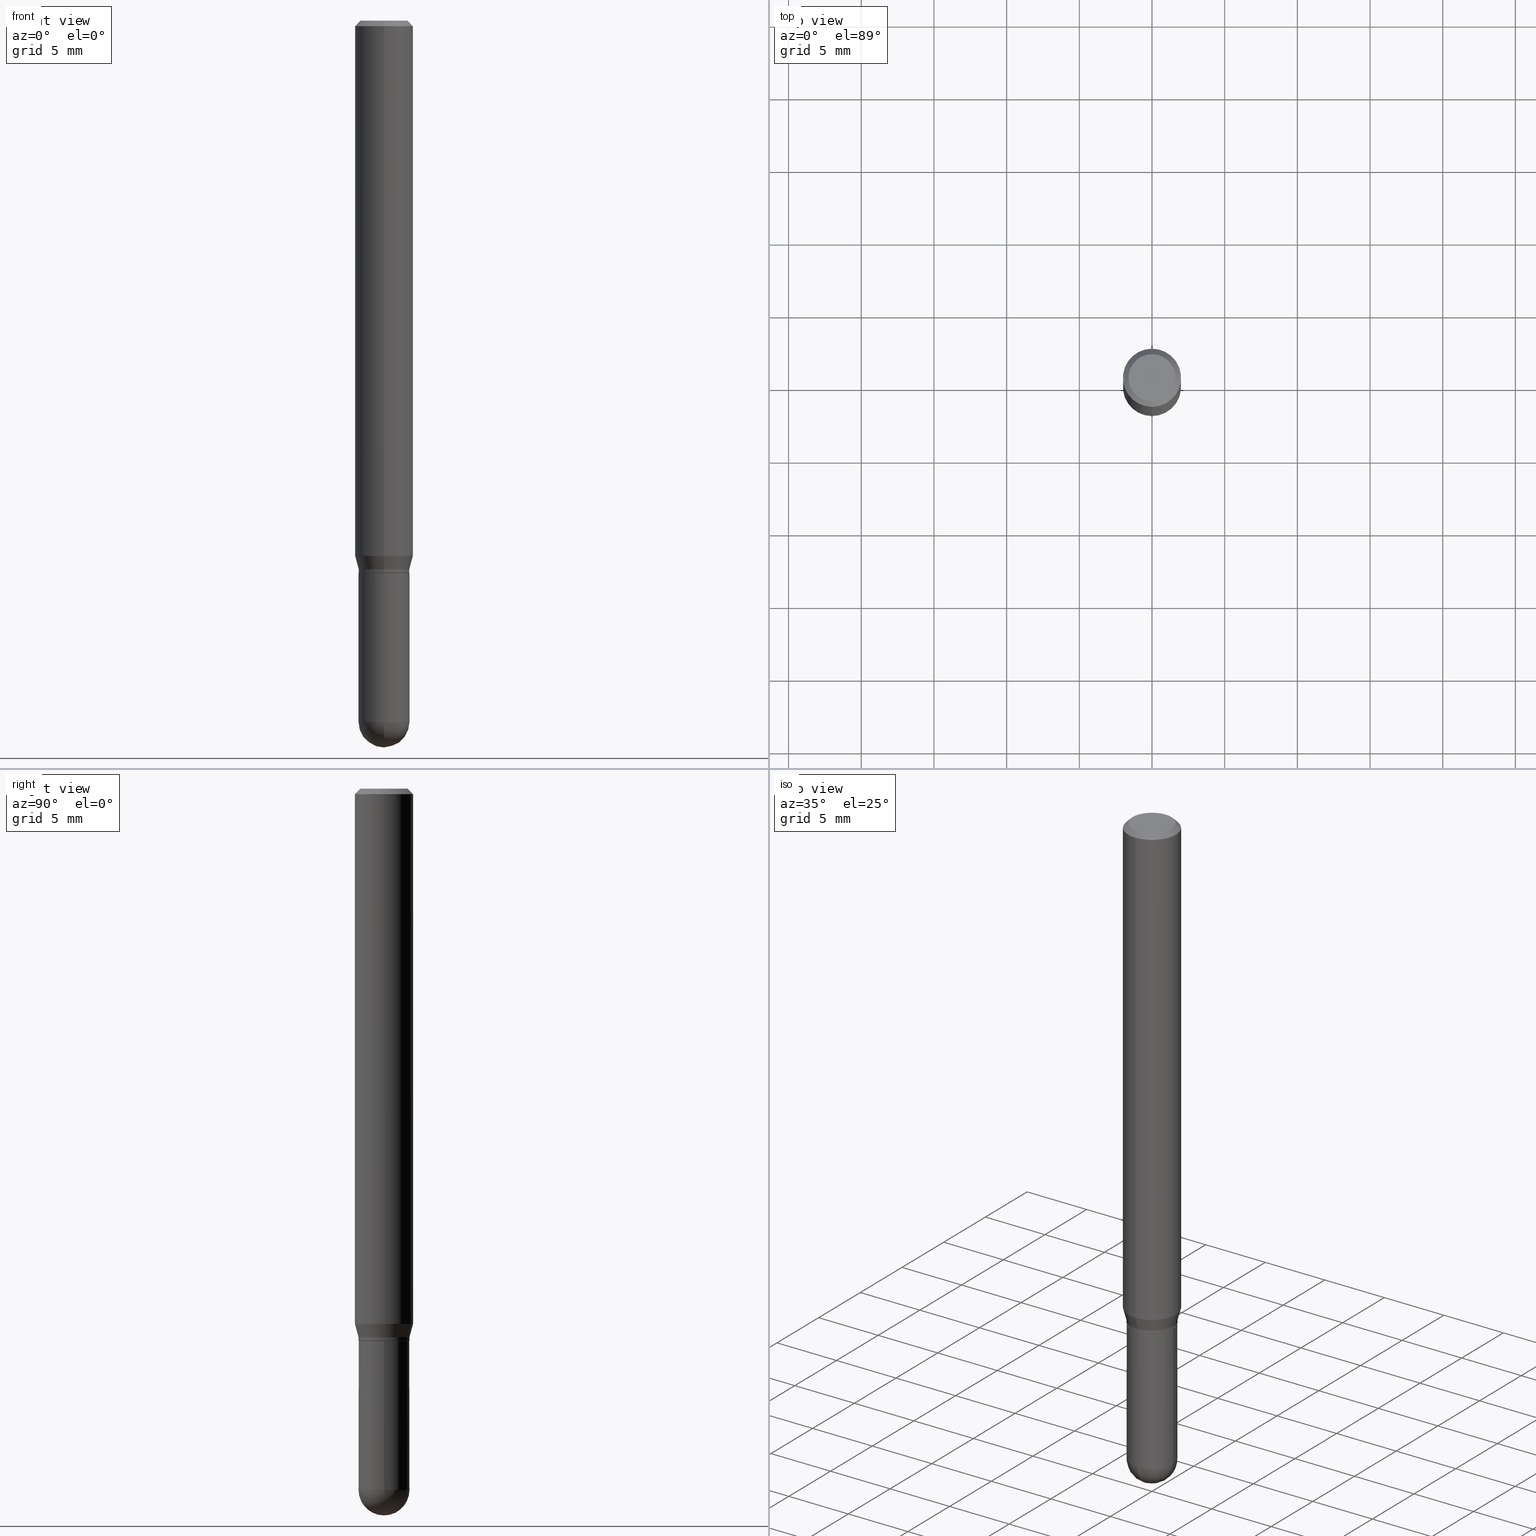
[diagram: canonical four-view strip — front | top / right | iso, engineering-drawing reading convention]
A machine part, canonical four-view strip (front | top / right | iso — engineering-drawing reading convention). The complete STEP part file that produces these views, byte-faithful:
ISO-10303-21;
HEADER;
FILE_DESCRIPTION (( 'STEP AP203' ),
    '1' );
FILE_NAME ('48847.STEP',
    '2024-03-08T13:28:36',
    ( '' ),
    ( '' ),
    'SwSTEP 2.0',
    'SolidWorks 2023',
    '' );
FILE_SCHEMA (( 'CONFIG_CONTROL_DESIGN' ));
ENDSEC;

DATA;
#1 = CALENDAR_DATE ( 2024, 8, 3 ) ;
#2 = CIRCLE ( 'NONE', #61, 0.07875000000000000056 ) ;
#3 = CARTESIAN_POINT ( 'NONE',  ( -4.776346471537044438E-16, -0.06840000000000528990, -1.496099999999999541 ) ) ;
#4 = PERSON_AND_ORGANIZATION_ROLE ( 'creator' ) ;
#5 = ADVANCED_FACE ( 'NONE', ( #337 ), #434, .T. ) ;
#6 = DIRECTION ( 'NONE',  ( 6.982962677686265922E-15, 1.000000000000000000, -3.964946289788482474E-15 ) ) ;
#7 = CARTESIAN_POINT ( 'NONE',  ( -4.811261284925454787E-16, -0.06890000000000491565, -1.486099999999999755 ) ) ;
#8 = CARTESIAN_POINT ( 'NONE',  ( -5.499083108677930499E-16, -0.07875000000000004219, -0.01499999999999973403 ) ) ;
#9 = ORIENTED_EDGE ( 'NONE', *, *, #501, .F. ) ;
#10 = FACE_OUTER_BOUND ( 'NONE', #179, .T. ) ;
#11 = ORIENTED_EDGE ( 'NONE', *, *, #383, .T. ) ;
#12 = EDGE_CURVE ( 'NONE', #94, #507, #140, .T. ) ;
#13 = DIRECTION ( 'NONE',  ( 1.000000000000000000, -6.982962677686265922E-15, 4.883557194083112340E-29 ) ) ;
#14 = ORIENTED_EDGE ( 'NONE', *, *, #142, .F. ) ;
#15 = DIRECTION ( 'NONE',  ( -2.445670945378724655E-29, 3.491191864012879314E-15, 1.000000000000000000 ) ) ;
#16 = VERTEX_POINT ( 'NONE', #72 ) ;
#17 = AXIS2_PLACEMENT_3D ( 'NONE', #92, #323, #249 ) ;
#18 = VECTOR ( 'NONE', #105, 39.37007874015748143 ) ;
#19 = FACE_OUTER_BOUND ( 'NONE', #456, .T. ) ;
#20 = EDGE_CURVE ( 'NONE', #321, #369, #338, .T. ) ;
#21 = ORIENTED_EDGE ( 'NONE', *, *, #494, .F. ) ;
#22 = DIRECTION ( 'NONE',  ( -6.982962677686266711E-15, -1.000000000000000000, 3.964946289788496674E-15 ) ) ;
#23 = ORIENTED_EDGE ( 'NONE', *, *, #480, .F. ) ;
#24 = DIRECTION ( 'NONE',  ( -2.445670945378724655E-29, 3.491191864012879314E-15, 1.000000000000000000 ) ) ;
#25 = APPLICATION_CONTEXT ( 'configuration controlled 3d designs of mechanical parts and assemblies' ) ;
#26 = ORIENTED_EDGE ( 'NONE', *, *, #20, .T. ) ;
#27 = EDGE_CURVE ( 'NONE', #507, #297, #350, .T. ) ;
#28 = DIRECTION ( 'NONE',  ( 6.982962677686264344E-15, 1.000000000000000000, -3.496114991891765576E-15 ) ) ;
#29 = CARTESIAN_POINT ( 'NONE',  ( 4.811261284926304785E-16, 0.06889999999999341096, -1.899600000000000399 ) ) ;
#30 = APPLICATION_PROTOCOL_DEFINITION ( 'international standard', 'config_control_design', 1994, #214 ) ;
#31 = VERTEX_POINT ( 'NONE', #392 ) ;
#32 = CARTESIAN_POINT ( 'NONE',  ( 0.000000000000000000, 0.000000000000000000, 0.000000000000000000 ) ) ;
#33 = VERTEX_POINT ( 'NONE', #29 ) ;
#34 = CIRCLE ( 'NONE', #17, 0.06889999999999998903 ) ;
#35 = LOCAL_TIME ( 8, 28, 36.00000000000000000, #159 ) ;
#36 = PERSON_AND_ORGANIZATION ( #389, #385 ) ;
#37 = DIRECTION ( 'NONE',  ( -1.807323732225323828E-15, -0.2588190451025172978, 0.9659258262890690894 ) ) ;
#38 = EDGE_CURVE ( 'NONE', #493, #252, #482, .T. ) ;
#39 = PERSON_AND_ORGANIZATION ( #389, #385 ) ;
#40 = APPROVAL_DATE_TIME ( #393, #272 ) ;
#41 = CARTESIAN_POINT ( 'NONE',  ( 4.645412544229285965E-29, -6.632417951266439838E-15, -1.899600000000000177 ) ) ;
#42 = AXIS2_PLACEMENT_3D ( 'NONE', #438, #202, #83 ) ;
#43 = DIRECTION ( 'NONE',  ( -6.982962677686266711E-15, -1.000000000000000000, 3.964946289788496674E-15 ) ) ;
#44 = AXIS2_PLACEMENT_3D ( 'NONE', #344, #298, #69 ) ;
#45 = LINE ( 'NONE', #317, #164 ) ;
#46 = CARTESIAN_POINT ( 'NONE',  ( 3.634511591927322892E-29, -5.188260229109540494E-15, -1.486099999999999977 ) ) ;
#47 = ORIENTED_EDGE ( 'NONE', *, *, #372, .F. ) ;
#48 = AXIS2_PLACEMENT_3D ( 'NONE', #63, #430, #260 ) ;
#49 = CARTESIAN_POINT ( 'NONE',  ( -4.811261284925827524E-16, -0.06889999999999986413, 2.405431194304868888E-16 ) ) ;
#50 = CONICAL_SURFACE ( 'NONE', #208, 0.06889999999999972535, 0.2617993877991494078 ) ;
#51 = EDGE_LOOP ( 'NONE', ( #9, #262, #130, #57 ) ) ;
#52 = CIRCLE ( 'NONE', #86, 0.06890000000000007230 ) ;
#53 = ADVANCED_FACE ( 'NONE', ( #65 ), #382, .T. ) ;
#54 = CARTESIAN_POINT ( 'NONE',  ( 5.595524044111143991E-16, 0.07874999999999994504, -0.01500000000000028394 ) ) ;
#55 = VERTEX_POINT ( 'NONE', #345 ) ;
#56 = DIRECTION ( 'NONE',  ( -6.982962677686266711E-15, -1.000000000000000000, 3.964946289788496674E-15 ) ) ;
#57 = ORIENTED_EDGE ( 'NONE', *, *, #98, .F. ) ;
#58 = EDGE_CURVE ( 'NONE', #55, #94, #146, .T. ) ;
#59 = DIRECTION ( 'NONE',  ( -1.000000000000000000, 6.982962677686265922E-15, -4.876176775795935793E-29 ) ) ;
#60 = ORIENTED_EDGE ( 'NONE', *, *, #279, .F. ) ;
#61 = AXIS2_PLACEMENT_3D ( 'NONE', #432, #241, #441 ) ;
#62 =( NAMED_UNIT ( * ) PLANE_ANGLE_UNIT ( ) SI_UNIT ( $, .RADIAN. ) );
#63 = CARTESIAN_POINT ( 'NONE',  ( 3.658968301381109379E-29, -5.223172147749667414E-15, -1.496099999999999985 ) ) ;
#64 = DIRECTION ( 'NONE',  ( 1.000000000000000000, 0.000000000000000000, 0.000000000000000000 ) ) ;
#65 = FACE_OUTER_BOUND ( 'NONE', #378, .T. ) ;
#66 = ORIENTED_EDGE ( 'NONE', *, *, #58, .T. ) ;
#67 = AXIS2_PLACEMENT_3D ( 'NONE', #99, #445, #96 ) ;
#68 = SECURITY_CLASSIFICATION ( '', '', #197 ) ;
#69 = DIRECTION ( 'NONE',  ( 6.982962677686265922E-15, 1.000000000000000000, -3.491191864012879314E-15 ) ) ;
#70 = EDGE_LOOP ( 'NONE', ( #292, #66, #374, #14 ) ) ;
#71 = DIRECTION ( 'NONE',  ( -7.105427357601001859E-15, -1.000000000000000000, 0.000000000000000000 ) ) ;
#72 = CARTESIAN_POINT ( 'NONE',  ( -4.895639449386624073E-16, -0.06890000000000662261, -1.899599999999999955 ) ) ;
#73 = APPROVAL_DATE_TIME ( #433, #89 ) ;
#74 = EDGE_CURVE ( 'NONE', #297, #286, #2, .T. ) ;
#75 = CARTESIAN_POINT ( 'NONE',  ( -4.888104823412213911E-16, -0.06375000000000000111, 2.141869659503777989E-16 ) ) ;
#76 = AXIS2_PLACEMENT_3D ( 'NONE', #436, #315, #478 ) ;
#77 = PERSON_AND_ORGANIZATION ( #389, #385 ) ;
#78 = FACE_OUTER_BOUND ( 'NONE', #51, .T. ) ;
#79 = PERSON_AND_ORGANIZATION_ROLE ( 'creator' ) ;
#80 = LINE ( 'NONE', #239, #233 ) ;
#81 = ADVANCED_FACE ( 'NONE', ( #78 ), #512, .T. ) ;
#82 = DATE_AND_TIME ( #440, #296 ) ;
#83 = DIRECTION ( 'NONE',  ( 6.982962677686265922E-15, 1.000000000000000000, -3.964946289788482474E-15 ) ) ;
#84 = CLOSED_SHELL ( 'NONE', ( #53, #467, #413, #255, #120, #308, #203, #343, #439, #314, #5, #332 ) ) ;
#85 = AXIS2_PLACEMENT_3D ( 'NONE', #280, #355, #154 ) ;
#86 = AXIS2_PLACEMENT_3D ( 'NONE', #186, #469, #336 ) ;
#87 = LINE ( 'NONE', #3, #266 ) ;
#88 = CARTESIAN_POINT ( 'NONE',  ( 4.645412544229285965E-29, -6.632417951266439838E-15, -1.899600000000000177 ) ) ;
#89 = APPROVAL ( #313, 'UNSPECIFIED' ) ;
#90 = CARTESIAN_POINT ( 'NONE',  ( 3.658665880933582389E-29, -5.223605231043229660E-15, -1.496099999999999985 ) ) ;
#91 = ORIENTED_EDGE ( 'NONE', *, *, #461, .T. ) ;
#92 = CARTESIAN_POINT ( 'NONE',  ( 3.657745465908420363E-29, -5.221426551817661699E-15, -1.495600000000000041 ) ) ;
#93 = CIRCLE ( 'NONE', #435, 0.07875000000000000056 ) ;
#94 = VERTEX_POINT ( 'NONE', #479 ) ;
#95 = CIRCLE ( 'NONE', #452, 0.06890000000000007230 ) ;
#96 = DIRECTION ( 'NONE',  ( -6.982962677686265922E-15, -1.000000000000000000, 3.491191864012879314E-15 ) ) ;
#97 = EDGE_LOOP ( 'NONE', ( #26, #206 ) ) ;
#98 = EDGE_CURVE ( 'NONE', #16, #295, #118, .T. ) ;
#99 = CARTESIAN_POINT ( 'NONE',  ( 3.658968301381109379E-29, -5.223172147749667414E-15, -1.496099999999999985 ) ) ;
#100 = ORIENTED_EDGE ( 'NONE', *, *, #485, .F. ) ;
#101 = ORIENTED_EDGE ( 'NONE', *, *, #74, .F. ) ;
#102 = VECTOR ( 'NONE', #108, 39.37007874015748854 ) ;
#103 = CARTESIAN_POINT ( 'NONE',  ( 2.048620028946805468E-46, -2.924402234498220248E-32, -8.376515380443243552E-18 ) ) ;
#104 = EDGE_LOOP ( 'NONE', ( #484, #458, #371, #182, #283 ) ) ;
#105 = DIRECTION ( 'NONE',  ( -4.851104656540964275E-15, -0.7071067811865500152, -0.7071067811865450192 ) ) ;
#106 = EDGE_CURVE ( 'NONE', #252, #412, #87, .T. ) ;
#107 = ORIENTED_EDGE ( 'NONE', *, *, #404, .T. ) ;
#108 = DIRECTION ( 'NONE',  ( 1.839019923739594004E-15, 0.2588190451025240701, 0.9659258262890673130 ) ) ;
#109 = AXIS2_PLACEMENT_3D ( 'NONE', #212, #486, #453 ) ;
#110 = CIRCLE ( 'NONE', #367, 0.06889999999999996128 ) ;
#111 = CARTESIAN_POINT ( 'NONE',  ( 3.658968301381109379E-29, -5.223172147749667414E-15, -1.496099999999999985 ) ) ;
#112 = EDGE_LOOP ( 'NONE', ( #171, #250, #326, #489 ) ) ;
#113 = EDGE_CURVE ( 'NONE', #425, #286, #198, .T. ) ;
#114 = EDGE_LOOP ( 'NONE', ( #138, #11, #107, #21 ) ) ;
#115 = APPROVAL_STATUS ( 'not_yet_approved' ) ;
#116 = DIRECTION ( 'NONE',  ( 1.000000000000000000, -6.982962677686265922E-15, 4.876176775795935232E-29 ) ) ;
#117 = UNCERTAINTY_MEASURE_WITH_UNIT (LENGTH_MEASURE( 1.000000000000000082E-05 ), #419, 'distance_accuracy_value', 'NONE');
#118 = CIRCLE ( 'NONE', #192, 0.06890000000000007230 ) ;
#119 = CALENDAR_DATE ( 2024, 8, 3 ) ;
#120 = ADVANCED_FACE ( 'NONE', ( #273 ), #50, .T. ) ;
#121 = COORDINATED_UNIVERSAL_TIME_OFFSET ( 5, 0, .BEHIND. ) ;
#122 = CARTESIAN_POINT ( 'NONE',  ( 4.679918503997674770E-29, -6.583003452920844326E-15, -1.899600000000000177 ) ) ;
#123 = DIRECTION ( 'NONE',  ( -6.982962677686264344E-15, -1.000000000000000000, 3.496114991891765576E-15 ) ) ;
#124 = CIRCLE ( 'NONE', #264, 0.06889999999999998903 ) ;
#125 = CYLINDRICAL_SURFACE ( 'NONE', #328, 0.06889999999999986413 ) ;
#126 = EDGE_CURVE ( 'NONE', #412, #31, #124, .T. ) ;
#127 = DIRECTION ( 'NONE',  ( -2.445468806185136597E-29, 3.491481338843145583E-15, 1.000000000000000000 ) ) ;
#128 = ORIENTED_EDGE ( 'NONE', *, *, #98, .T. ) ;
#129 = CARTESIAN_POINT ( 'NONE',  ( 3.634511591927322892E-29, -5.188260229109540494E-15, -1.486099999999999977 ) ) ;
#130 = ORIENTED_EDGE ( 'NONE', *, *, #474, .F. ) ;
#131 = ADVANCED_BREP_SHAPE_REPRESENTATION ( '48847', ( #153, #320, #218 ), #288 ) ;
#132 = FACE_OUTER_BOUND ( 'NONE', #388, .T. ) ;
#133 = AXIS2_PLACEMENT_3D ( 'NONE', #334, #13, #411 ) ;
#134 = ORIENTED_EDGE ( 'NONE', *, *, #187, .T. ) ;
#135 = FACE_OUTER_BOUND ( 'NONE', #177, .T. ) ;
#136 = VERTEX_POINT ( 'NONE', #403 ) ;
#137 = CARTESIAN_POINT ( 'NONE',  ( 3.634511591927322892E-29, -5.188260229109540494E-15, -1.486099999999999977 ) ) ;
#138 = ORIENTED_EDGE ( 'NONE', *, *, #461, .F. ) ;
#139 = CARTESIAN_POINT ( 'NONE',  ( 4.679918503997674770E-29, -6.583003452920844326E-15, -1.899600000000000177 ) ) ;
#140 = CIRCLE ( 'NONE', #207, 0.07874999999999997280 ) ;
#141 = VERTEX_POINT ( 'NONE', #75 ) ;
#142 = EDGE_CURVE ( 'NONE', #168, #507, #80, .T. ) ;
#143 = DIRECTION ( 'NONE',  ( -2.445468806185136597E-29, 3.491481338843145583E-15, 1.000000000000000000 ) ) ;
#144 = ORIENTED_EDGE ( 'NONE', *, *, #404, .F. ) ;
#145 = CARTESIAN_POINT ( 'NONE',  ( 3.668506418068089103E-31, -5.236787796019322053E-17, -0.01500000000000000812 ) ) ;
#146 = LINE ( 'NONE', #466, #102 ) ;
#147 = DIRECTION ( 'NONE',  ( -1.000000000000000000, 7.105427357601001070E-15, -4.926315508542082329E-29 ) ) ;
#148 = DIRECTION ( 'NONE',  ( -6.982962677686265922E-15, -1.000000000000000000, 3.469013325287954477E-15 ) ) ;
#149 = EDGE_CURVE ( 'NONE', #286, #297, #93, .T. ) ;
#150 = CIRCLE ( 'NONE', #427, 0.06840000000000005798 ) ;
#151 = ORIENTED_EDGE ( 'NONE', *, *, #284, .F. ) ;
#152 = APPROVAL_DATE_TIME ( #82, #263 ) ;
#153 = MANIFOLD_SOLID_BREP ( 'Body-Move/Copy2[1]', #327 ) ;
#154 = DIRECTION ( 'NONE',  ( -6.982962677686265922E-15, -1.000000000000000000, 3.491191864012879709E-15 ) ) ;
#155 = MECHANICAL_CONTEXT ( 'NONE', #214, 'mechanical' ) ;
#156 = DIRECTION ( 'NONE',  ( -2.445468806185136597E-29, 3.491481338843145583E-15, 1.000000000000000000 ) ) ;
#157 = AXIS2_PLACEMENT_3D ( 'NONE', #307, #380, #496 ) ;
#158 = APPROVAL_PERSON_ORGANIZATION ( #311, #89, #473 ) ;
#159 = COORDINATED_UNIVERSAL_TIME_OFFSET ( 5, 0, .BEHIND. ) ;
#160 = DIRECTION ( 'NONE',  ( -2.445468806185136597E-29, 3.491481338843145583E-15, 1.000000000000000000 ) ) ;
#161 = FACE_OUTER_BOUND ( 'NONE', #259, .T. ) ;
#162 = FACE_OUTER_BOUND ( 'NONE', #104, .T. ) ;
#163 = ADVANCED_FACE ( 'NONE', ( #442 ), #276, .T. ) ;
#164 = VECTOR ( 'NONE', #270, 39.37007874015748143 ) ;
#165 = DIRECTION ( 'NONE',  ( -6.982962677686264344E-15, -1.000000000000000000, 3.491191864012878920E-15 ) ) ;
#166 = ORIENTED_EDGE ( 'NONE', *, *, #149, .T. ) ;
#167 = CYLINDRICAL_SURFACE ( 'NONE', #451, 0.07874999999999997280 ) ;
#168 = VERTEX_POINT ( 'NONE', #7 ) ;
#169 = CC_DESIGN_DATE_AND_TIME_ASSIGNMENT ( #477, #271, ( #68 ) ) ;
#170 = FACE_OUTER_BOUND ( 'NONE', #112, .T. ) ;
#171 = ORIENTED_EDGE ( 'NONE', *, *, #58, .F. ) ;
#172 = AXIS2_PLACEMENT_3D ( 'NONE', #88, #448, #483 ) ;
#173 = PLANE ( 'NONE',  #67 ) ;
#174 = PRODUCT_DEFINITION_FORMATION_WITH_SPECIFIED_SOURCE ( 'ANY', '', #191, .NOT_KNOWN. ) ;
#175 = ORIENTED_EDGE ( 'NONE', *, *, #501, .T. ) ;
#176 = DIRECTION ( 'NONE',  ( -2.445468806185136877E-29, 3.491481338843145188E-15, 1.000000000000000000 ) ) ;
#177 = EDGE_LOOP ( 'NONE', ( #23, #188, #269, #166 ) ) ;
#178 =( NAMED_UNIT ( * ) SI_UNIT ( $, .STERADIAN. ) SOLID_ANGLE_UNIT ( ) );
#179 = EDGE_LOOP ( 'NONE', ( #100, #333, #364, #420 ) ) ;
#180 = ADVANCED_FACE ( 'NONE', ( #162 ), #509, .T. ) ;
#181 = CARTESIAN_POINT ( 'NONE',  ( -5.499083108677578469E-16, -0.07875000000000501044, -1.449339299545445270 ) ) ;
#182 = ORIENTED_EDGE ( 'NONE', *, *, #211, .F. ) ;
#183 = AXIS2_PLACEMENT_3D ( 'NONE', #281, #15, #165 ) ;
#184 = VECTOR ( 'NONE', #209, 39.37007874015748143 ) ;
#185 = ORIENTED_EDGE ( 'NONE', *, *, #444, .T. ) ;
#186 = CARTESIAN_POINT ( 'NONE',  ( 4.645412544229285965E-29, -6.632417951266439838E-15, -1.899600000000000177 ) ) ;
#187 = EDGE_CURVE ( 'NONE', #507, #94, #497, .T. ) ;
#188 = ORIENTED_EDGE ( 'NONE', *, *, #299, .F. ) ;
#189 = CARTESIAN_POINT ( 'NONE',  ( 4.975360907851465623E-16, 0.06375000000000000111, -2.309399967112643384E-16 ) ) ;
#190 = DIRECTION ( 'NONE',  ( 1.000000000000000000, -6.982962677686273021E-15, 0.000000000000000000 ) ) ;
#191 = PRODUCT ( '48847', '48847', '', ( #155 ) ) ;
#192 = AXIS2_PLACEMENT_3D ( 'NONE', #41, #156, #396 ) ;
#193 = CC_DESIGN_APPROVAL ( #263, ( #68 ) ) ;
#194 = DIRECTION ( 'NONE',  ( -2.445670945378724655E-29, 3.491191864012879314E-15, 1.000000000000000000 ) ) ;
#195 = COORDINATED_UNIVERSAL_TIME_OFFSET ( 5, 0, .BEHIND. ) ;
#196 = DIRECTION ( 'NONE',  ( 2.438088387897960049E-29, -3.491481338843145188E-15, -1.000000000000000000 ) ) ;
#197 = SECURITY_CLASSIFICATION_LEVEL ( 'unclassified' ) ;
#198 = LINE ( 'NONE', #475, #349 ) ;
#199 = CONICAL_SURFACE ( 'NONE', #109, 0.07875000000000000056, 0.7853981633974483900 ) ;
#200 = AXIS2_PLACEMENT_3D ( 'NONE', #346, #301, #294 ) ;
#201 = COORDINATED_UNIVERSAL_TIME_OFFSET ( 5, 0, .BEHIND. ) ;
#202 = DIRECTION ( 'NONE',  ( -1.000000000000000000, 6.982962677686265922E-15, -4.883557194083112901E-29 ) ) ;
#203 = ADVANCED_FACE ( 'NONE', ( #161 ), #278, .T. ) ;
#204 = DIRECTION ( 'NONE',  ( -4.937700262164674260E-15, -0.7071067811865632269, 0.7071067811865319186 ) ) ;
#205 = CYLINDRICAL_SURFACE ( 'NONE', #460, 0.06890000000000007230 ) ;
#206 = ORIENTED_EDGE ( 'NONE', *, *, #293, .T. ) ;
#207 = AXIS2_PLACEMENT_3D ( 'NONE', #265, #225, #148 ) ;
#208 = AXIS2_PLACEMENT_3D ( 'NONE', #362, #316, #43 ) ;
#209 = DIRECTION ( 'NONE',  ( -2.445670945378724655E-29, 3.491191864012879314E-15, 1.000000000000000000 ) ) ;
#210 = ORIENTED_EDGE ( 'NONE', *, *, #383, .F. ) ;
#211 = EDGE_CURVE ( 'NONE', #295, #321, #45, .T. ) ;
#212 = CARTESIAN_POINT ( 'NONE',  ( 3.668506418068089103E-31, -5.236787796019322053E-17, -0.01500000000000000812 ) ) ;
#213 = ORIENTED_EDGE ( 'NONE', *, *, #211, .T. ) ;
#214 = APPLICATION_CONTEXT ( 'configuration controlled 3d designs of mechanical parts and assemblies' ) ;
#215 = FACE_OUTER_BOUND ( 'NONE', #447, .T. ) ;
#216 = ORIENTED_EDGE ( 'NONE', *, *, #429, .F. ) ;
#217 = DIRECTION ( 'NONE',  ( -6.982962677686265922E-15, -1.000000000000000000, 3.491191864012879709E-15 ) ) ;
#218 = AXIS2_PLACEMENT_3D ( 'NONE', #32, #462, #64 ) ;
#219 = ORIENTED_EDGE ( 'NONE', *, *, #27, .T. ) ;
#220 = CARTESIAN_POINT ( 'NONE',  ( 4.895639449387079640E-16, 0.06889999999999986413, -2.405431194304868888E-16 ) ) ;
#221 = EDGE_CURVE ( 'NONE', #94, #286, #232, .T. ) ;
#222 = CARTESIAN_POINT ( 'NONE',  ( -5.499083108677932471E-16, -0.07874999999999997280, 2.749313592910141844E-16 ) ) ;
#223 = LINE ( 'NONE', #384, #18 ) ;
#224 = ORIENTED_EDGE ( 'NONE', *, *, #397, .F. ) ;
#225 = DIRECTION ( 'NONE',  ( -2.445670945378724655E-29, 3.491191864012879314E-15, 1.000000000000000000 ) ) ;
#226 = AXIS2_PLACEMENT_3D ( 'NONE', #90, #289, #377 ) ;
#227 = CC_DESIGN_SECURITY_CLASSIFICATION ( #68, ( #174 ) ) ;
#228 = PRODUCT_RELATED_PRODUCT_CATEGORY ( 'detail', '', ( #191 ) ) ;
#229 = ORIENTED_EDGE ( 'NONE', *, *, #221, .T. ) ;
#230 = CARTESIAN_POINT ( 'NONE',  ( 3.658665880933582389E-29, -5.223605231043229660E-15, -1.496099999999999985 ) ) ;
#231 = APPROVAL_STATUS ( 'not_yet_approved' ) ;
#232 = LINE ( 'NONE', #395, #418 ) ;
#233 = VECTOR ( 'NONE', #37, 39.37007874015748854 ) ;
#234 = CIRCLE ( 'NONE', #248, 0.06889999999999972535 ) ;
#235 = CARTESIAN_POINT ( 'NONE',  ( 4.811261284926208150E-16, 0.06889999999999484037, -1.496100000000000207 ) ) ;
#236 = CC_DESIGN_PERSON_AND_ORGANIZATION_ASSIGNMENT ( #508, #357, ( #68 ) ) ;
#237 = DESIGN_CONTEXT ( 'detailed design', #25, 'design' ) ;
#238 = CALENDAR_DATE ( 2024, 8, 3 ) ;
#239 = CARTESIAN_POINT ( 'NONE',  ( -4.811261284925454787E-16, -0.06890000000000491565, -1.486099999999999755 ) ) ;
#240 = SHAPE_DEFINITION_REPRESENTATION ( #390, #131 ) ;
#241 = DIRECTION ( 'NONE',  ( -2.445670945378724655E-29, 3.491191864012879314E-15, 1.000000000000000000 ) ) ;
#242 = AXIS2_PLACEMENT_3D ( 'NONE', #46, #291, #56 ) ;
#243 = ADVANCED_FACE ( 'NONE', ( #353 ), #310, .F. ) ;
#244 = DIRECTION ( 'NONE',  ( -6.982962677686265922E-15, -1.000000000000000000, 3.964946289788481685E-15 ) ) ;
#245 = DIRECTION ( 'NONE',  ( -6.982962677686266711E-15, -1.000000000000000000, 3.964946289788496674E-15 ) ) ;
#246 = CARTESIAN_POINT ( 'NONE',  ( 4.860112312599455225E-16, 0.06839999999999483993, -1.496100000000000207 ) ) ;
#247 = ORIENTED_EDGE ( 'NONE', *, *, #485, .T. ) ;
#248 = AXIS2_PLACEMENT_3D ( 'NONE', #137, #387, #22 ) ;
#249 = DIRECTION ( 'NONE',  ( -6.982962677686265922E-15, -1.000000000000000000, 3.964946289788481685E-15 ) ) ;
#250 = ORIENTED_EDGE ( 'NONE', *, *, #494, .T. ) ;
#251 = CARTESIAN_POINT ( 'NONE',  ( 0.06890000000000008618, -6.409137719647418882E-15, -1.899600000000000177 ) ) ;
#252 = VERTEX_POINT ( 'NONE', #488 ) ;
#253 = DIRECTION ( 'NONE',  ( 1.000000000000000000, -6.982962677686265922E-15, 4.876176775795935232E-29 ) ) ;
#254 = ORIENTED_EDGE ( 'NONE', *, *, #299, .T. ) ;
#255 = ADVANCED_FACE ( 'NONE', ( #132 ), #167, .T. ) ;
#256 = AXIS2_PLACEMENT_3D ( 'NONE', #235, #196, #59 ) ;
#257 = DIRECTION ( 'NONE',  ( 2.445670945378724655E-29, -3.491191864012879314E-15, -1.000000000000000000 ) ) ;
#258 = CIRCLE ( 'NONE', #376, 0.06375000000000000111 ) ;
#259 = EDGE_LOOP ( 'NONE', ( #290, #304, #219, #502 ) ) ;
#260 = DIRECTION ( 'NONE',  ( -6.982962677686266711E-15, -1.000000000000000000, 3.993929815298627073E-15 ) ) ;
#261 = FACE_OUTER_BOUND ( 'NONE', #471, .T. ) ;
#262 = ORIENTED_EDGE ( 'NONE', *, *, #279, .T. ) ;
#263 = APPROVAL ( #231, 'UNSPECIFIED' ) ;
#264 = AXIS2_PLACEMENT_3D ( 'NONE', #400, #312, #244 ) ;
#265 = CARTESIAN_POINT ( 'NONE',  ( 3.544607014893848189E-29, -5.059921570767185475E-15, -1.449339299545445714 ) ) ;
#266 = VECTOR ( 'NONE', #204, 39.37007874015748143 ) ;
#267 = LOCAL_TIME ( 8, 28, 36.00000000000000000, #195 ) ;
#268 = CARTESIAN_POINT ( 'NONE',  ( -0.06890000000000008618, -5.438447646216124813E-15, -1.899600000000000177 ) ) ;
#269 = ORIENTED_EDGE ( 'NONE', *, *, #113, .T. ) ;
#270 = DIRECTION ( 'NONE',  ( -2.445468806185136877E-29, 3.491481338843145188E-15, 1.000000000000000000 ) ) ;
#271 = DATE_TIME_ROLE ( 'classification_date' ) ;
#272 = APPROVAL ( #115, 'UNSPECIFIED' ) ;
#273 = FACE_OUTER_BOUND ( 'NONE', #70, .T. ) ;
#274 = AXIS2_PLACEMENT_3D ( 'NONE', #230, #423, #190 ) ;
#275 = APPROVAL_PERSON_ORGANIZATION ( #77, #263, #348 ) ;
#276 = SPHERICAL_SURFACE ( 'NONE', #42, 0.06889999999999996128 ) ;
#277 = PERSON_AND_ORGANIZATION_ROLE ( 'design_owner' ) ;
#278 = CYLINDRICAL_SURFACE ( 'NONE', #85, 0.07874999999999997280 ) ;
#279 = EDGE_CURVE ( 'NONE', #136, #33, #459, .T. ) ;
#280 = CARTESIAN_POINT ( 'NONE',  ( 0.000000000000000000, 0.000000000000000000, 0.000000000000000000 ) ) ;
#281 = CARTESIAN_POINT ( 'NONE',  ( 2.048620028946805468E-46, -2.924402234498220248E-32, -8.376515380443243552E-18 ) ) ;
#282 = LINE ( 'NONE', #246, #318 ) ;
#283 = ORIENTED_EDGE ( 'NONE', *, *, #474, .T. ) ;
#284 = EDGE_CURVE ( 'NONE', #504, #369, #446, .T. ) ;
#285 = CARTESIAN_POINT ( 'NONE',  ( 0.000000000000000000, 0.000000000000000000, 0.000000000000000000 ) ) ;
#286 = VERTEX_POINT ( 'NONE', #54 ) ;
#287 = AXIS2_PLACEMENT_3D ( 'NONE', #499, #300, #464 ) ;
#288 =( GEOMETRIC_REPRESENTATION_CONTEXT ( 3 ) GLOBAL_UNCERTAINTY_ASSIGNED_CONTEXT ( ( #117 ) ) GLOBAL_UNIT_ASSIGNED_CONTEXT ( ( #419, #62, #178 ) ) REPRESENTATION_CONTEXT ( 'NONE', 'WORKASPACE' ) );
#289 = DIRECTION ( 'NONE',  ( -2.445468806185136597E-29, 3.491481338843145583E-15, 1.000000000000000000 ) ) ;
#290 = ORIENTED_EDGE ( 'NONE', *, *, #221, .F. ) ;
#291 = DIRECTION ( 'NONE',  ( -2.445670945378724655E-29, 3.491191864012879314E-15, 1.000000000000000000 ) ) ;
#292 = ORIENTED_EDGE ( 'NONE', *, *, #372, .T. ) ;
#293 = EDGE_CURVE ( 'NONE', #369, #321, #339, .T. ) ;
#294 = DIRECTION ( 'NONE',  ( -6.982962677686266711E-15, -1.000000000000000000, 3.993929815298627073E-15 ) ) ;
#295 = VERTEX_POINT ( 'NONE', #251 ) ;
#296 = LOCAL_TIME ( 8, 28, 36.00000000000000000, #121 ) ;
#297 = VERTEX_POINT ( 'NONE', #8 ) ;
#298 = DIRECTION ( 'NONE',  ( 2.445670945378724095E-29, -3.491191864012879314E-15, -1.000000000000000000 ) ) ;
#299 = EDGE_CURVE ( 'NONE', #425, #141, #408, .T. ) ;
#300 = DIRECTION ( 'NONE',  ( -2.445670945378724655E-29, 3.491191864012879314E-15, 1.000000000000000000 ) ) ;
#301 = DIRECTION ( 'NONE',  ( -2.445670945378724655E-29, 3.491191864012879314E-15, 1.000000000000000000 ) ) ;
#302 = EDGE_LOOP ( 'NONE', ( #224, #470, #386, #210 ) ) ;
#303 = DIRECTION ( 'NONE',  ( -2.445670945378724655E-29, 3.491191864012879314E-15, 1.000000000000000000 ) ) ;
#304 = ORIENTED_EDGE ( 'NONE', *, *, #12, .T. ) ;
#305 = APPROVAL_PERSON_ORGANIZATION ( #309, #272, #437 ) ;
#306 = CALENDAR_DATE ( 2024, 8, 3 ) ;
#307 = CARTESIAN_POINT ( 'NONE',  ( 3.658968301381109379E-29, -5.223172147749667414E-15, -1.496099999999999985 ) ) ;
#308 = ADVANCED_FACE ( 'NONE', ( #170 ), #359, .T. ) ;
#309 = PERSON_AND_ORGANIZATION ( #389, #385 ) ;
#310 = PLANE ( 'NONE',  #256 ) ;
#311 = PERSON_AND_ORGANIZATION ( #389, #385 ) ;
#312 = DIRECTION ( 'NONE',  ( -2.445670945378724655E-29, 3.491191864012879314E-15, 1.000000000000000000 ) ) ;
#313 = APPROVAL_STATUS ( 'not_yet_approved' ) ;
#314 = ADVANCED_FACE ( 'NONE', ( #19 ), #173, .F. ) ;
#315 = DIRECTION ( 'NONE',  ( -2.445670945378724655E-29, 3.491191864012879314E-15, 1.000000000000000000 ) ) ;
#316 = DIRECTION ( 'NONE',  ( -2.445670945378724655E-29, 3.491191864012879314E-15, 1.000000000000000000 ) ) ;
#317 = CARTESIAN_POINT ( 'NONE',  ( 0.06890000000000007230, -4.811261284925842315E-16, 3.359685798523402771E-30 ) ) ;
#318 = VECTOR ( 'NONE', #416, 39.37007874015748143 ) ;
#319 = DIRECTION ( 'NONE',  ( -2.445670945378724655E-29, 3.491191864012879314E-15, 1.000000000000000000 ) ) ;
#320 = MANIFOLD_SOLID_BREP ( 'Body-Move/Copy2[2]', #84 ) ;
#321 = VERTEX_POINT ( 'NONE', #370 ) ;
#322 = CC_DESIGN_PERSON_AND_ORGANIZATION_ASSIGNMENT ( #39, #360, ( #174 ) ) ;
#323 = DIRECTION ( 'NONE',  ( -2.445670945378724655E-29, 3.491191864012879314E-15, 1.000000000000000000 ) ) ;
#324 = ORIENTED_EDGE ( 'NONE', *, *, #126, .T. ) ;
#325 = FACE_OUTER_BOUND ( 'NONE', #114, .T. ) ;
#326 = ORIENTED_EDGE ( 'NONE', *, *, #142, .T. ) ;
#327 = CLOSED_SHELL ( 'NONE', ( #180, #163, #243, #81, #391 ) ) ;
#328 = AXIS2_PLACEMENT_3D ( 'NONE', #285, #319, #405 ) ;
#329 = AXIS2_PLACEMENT_3D ( 'NONE', #145, #257, #28 ) ;
#330 = LOCAL_TIME ( 8, 28, 36.00000000000000000, #201 ) ;
#331 = DIRECTION ( 'NONE',  ( -2.445670945378724655E-29, 3.491191864012879314E-15, 1.000000000000000000 ) ) ;
#332 = ADVANCED_FACE ( 'NONE', ( #325 ), #125, .T. ) ;
#333 = ORIENTED_EDGE ( 'NONE', *, *, #480, .T. ) ;
#334 = CARTESIAN_POINT ( 'NONE',  ( 4.679918503997674770E-29, -6.583003452920844326E-15, -1.899600000000000177 ) ) ;
#335 = ORIENTED_EDGE ( 'NONE', *, *, #27, .F. ) ;
#336 = DIRECTION ( 'NONE',  ( 1.000000000000000000, -6.982962677686273021E-15, 0.000000000000000000 ) ) ;
#337 = FACE_OUTER_BOUND ( 'NONE', #302, .T. ) ;
#338 = CIRCLE ( 'NONE', #274, 0.06890000000000007230 ) ;
#339 = CIRCLE ( 'NONE', #226, 0.06890000000000007230 ) ;
#340 = PLANE ( 'NONE',  #44 ) ;
#341 = CONICAL_SURFACE ( 'NONE', #200, 0.06840000000000005798, 0.7853981633974739252 ) ;
#342 = DIRECTION ( 'NONE',  ( -2.445670945378724655E-29, 3.491191864012879314E-15, 1.000000000000000000 ) ) ;
#343 = ADVANCED_FACE ( 'NONE', ( #135 ), #199, .T. ) ;
#344 = CARTESIAN_POINT ( 'NONE',  ( 4.451638707024993845E-16, 0.06375000000000000111, -2.267517390210426665E-16 ) ) ;
#345 = CARTESIAN_POINT ( 'NONE',  ( 5.245581746749287830E-16, 0.06889999999999453506, -1.486100000000000199 ) ) ;
#346 = CARTESIAN_POINT ( 'NONE',  ( 3.658968301381109379E-29, -5.223172147749667414E-15, -1.496099999999999985 ) ) ;
#347 = ORIENTED_EDGE ( 'NONE', *, *, #106, .F. ) ;
#348 = APPROVAL_ROLE ( '' ) ;
#349 = VECTOR ( 'NONE', #472, 39.37007874015748143 ) ;
#350 = LINE ( 'NONE', #222, #490 ) ;
#351 = EDGE_CURVE ( 'NONE', #33, #504, #401, .T. ) ;
#352 = DATE_TIME_ROLE ( 'creation_date' ) ;
#353 = FACE_OUTER_BOUND ( 'NONE', #97, .T. ) ;
#354 = PERSON_AND_ORGANIZATION ( #389, #385 ) ;
#355 = DIRECTION ( 'NONE',  ( -2.445670945378724655E-29, 3.491191864012879314E-15, 1.000000000000000000 ) ) ;
#356 = CC_DESIGN_PERSON_AND_ORGANIZATION_ASSIGNMENT ( #354, #79, ( #449 ) ) ;
#357 = PERSON_AND_ORGANIZATION_ROLE ( 'classification_officer' ) ;
#358 = CARTESIAN_POINT ( 'NONE',  ( 3.668506418068089103E-31, -5.236787796019322053E-17, -0.01500000000000000812 ) ) ;
#359 = CONICAL_SURFACE ( 'NONE', #426, 0.06889999999999972535, 0.2617993877991494078 ) ;
#360 = PERSON_AND_ORGANIZATION_ROLE ( 'design_supplier' ) ;
#361 = CARTESIAN_POINT ( 'NONE',  ( 0.000000000000000000, 0.000000000000000000, 0.000000000000000000 ) ) ;
#362 = CARTESIAN_POINT ( 'NONE',  ( 3.634511591927322892E-29, -5.188260229109540494E-15, -1.486099999999999977 ) ) ;
#363 = DIRECTION ( 'NONE',  ( -2.445670945378724655E-29, 3.491191864012879314E-15, 1.000000000000000000 ) ) ;
#364 = ORIENTED_EDGE ( 'NONE', *, *, #74, .T. ) ;
#365 = CC_DESIGN_PERSON_AND_ORGANIZATION_ASSIGNMENT ( #36, #277, ( #191 ) ) ;
#366 = AXIS2_PLACEMENT_3D ( 'NONE', #122, #399, #6 ) ;
#367 = AXIS2_PLACEMENT_3D ( 'NONE', #139, #147, #71 ) ;
#368 = CARTESIAN_POINT ( 'NONE',  ( -4.811261284925468592E-16, -0.06890000000000517932, -1.495599999999999818 ) ) ;
#369 = VERTEX_POINT ( 'NONE', #414 ) ;
#370 = CARTESIAN_POINT ( 'NONE',  ( 0.06890000000000007230, -5.704731359535814187E-15, -1.496099999999999985 ) ) ;
#371 = ORIENTED_EDGE ( 'NONE', *, *, #20, .F. ) ;
#372 = EDGE_CURVE ( 'NONE', #168, #55, #468, .T. ) ;
#373 = CARTESIAN_POINT ( 'NONE',  ( 0.000000000000000000, 0.000000000000000000, 0.000000000000000000 ) ) ;
#374 = ORIENTED_EDGE ( 'NONE', *, *, #187, .F. ) ;
#375 = VECTOR ( 'NONE', #176, 39.37007874015748143 ) ;
#376 = AXIS2_PLACEMENT_3D ( 'NONE', #103, #503, #379 ) ;
#377 = DIRECTION ( 'NONE',  ( 1.000000000000000000, -6.982962677686273021E-15, 0.000000000000000000 ) ) ;
#378 = EDGE_LOOP ( 'NONE', ( #324, #91, #47, #144 ) ) ;
#379 = DIRECTION ( 'NONE',  ( -6.982962677686264344E-15, -1.000000000000000000, 3.491191864012878920E-15 ) ) ;
#380 = DIRECTION ( 'NONE',  ( -2.445670945378724655E-29, 3.491191864012879314E-15, 1.000000000000000000 ) ) ;
#381 = LINE ( 'NONE', #220, #476 ) ;
#382 = CYLINDRICAL_SURFACE ( 'NONE', #287, 0.06889999999999986413 ) ;
#383 = EDGE_CURVE ( 'NONE', #31, #412, #34, .T. ) ;
#384 = CARTESIAN_POINT ( 'NONE',  ( -5.402642173245076924E-16, -0.07875000000000004219, -0.01499999999999973403 ) ) ;
#385 = ORGANIZATION ( 'UNSPECIFIED', 'UNSPECIFIED', '' ) ;
#386 = ORIENTED_EDGE ( 'NONE', *, *, #106, .T. ) ;
#387 = DIRECTION ( 'NONE',  ( -2.445670945378724655E-29, 3.491191864012879314E-15, 1.000000000000000000 ) ) ;
#388 = EDGE_LOOP ( 'NONE', ( #134, #229, #101, #335 ) ) ;
#389 = PERSON ( 'UNSPECIFIED', 'UNSPECIFIED', 'UNSPECIFIED', ('UNSPECIFIED'), ('UNSPECIFIED'), ('UNSPECIFIED') ) ;
#390 = PRODUCT_DEFINITION_SHAPE ( 'NONE', 'NONE',  #449 ) ;
#391 = ADVANCED_FACE ( 'NONE', ( #215 ), #205, .T. ) ;
#392 = CARTESIAN_POINT ( 'NONE',  ( 4.895639449387457308E-16, 0.06889999999999479874, -1.495600000000000263 ) ) ;
#393 = DATE_AND_TIME ( #1, #267 ) ;
#394 = AXIS2_PLACEMENT_3D ( 'NONE', #361, #160, #116 ) ;
#395 = CARTESIAN_POINT ( 'NONE',  ( 5.595524044110786045E-16, 0.07874999999999997280, -2.749313592910141844E-16 ) ) ;
#396 = DIRECTION ( 'NONE',  ( 1.000000000000000000, -6.982962677686273021E-15, 0.000000000000000000 ) ) ;
#397 = EDGE_CURVE ( 'NONE', #493, #31, #282, .T. ) ;
#398 = PERSON_AND_ORGANIZATION ( #389, #385 ) ;
#399 = DIRECTION ( 'NONE',  ( -1.000000000000000000, 6.982962677686265922E-15, -4.883557194083112901E-29 ) ) ;
#400 = CARTESIAN_POINT ( 'NONE',  ( 3.657745465908420363E-29, -5.221426551817661699E-15, -1.495600000000000041 ) ) ;
#401 = CIRCLE ( 'NONE', #172, 0.06890000000000007230 ) ;
#402 = LOCAL_TIME ( 8, 28, 36.00000000000000000, #431 ) ;
#403 = CARTESIAN_POINT ( 'NONE',  ( 4.851357352610053575E-29, -6.819347608944073688E-15, -1.968500000000000139 ) ) ;
#404 = EDGE_CURVE ( 'NONE', #412, #168, #406, .T. ) ;
#405 = DIRECTION ( 'NONE',  ( -6.982962677686265922E-15, -1.000000000000000000, 3.491191864012878920E-15 ) ) ;
#406 = LINE ( 'NONE', #49, #184 ) ;
#407 = ORIENTED_EDGE ( 'NONE', *, *, #38, .F. ) ;
#408 = CIRCLE ( 'NONE', #183, 0.06375000000000000111 ) ;
#409 = CONICAL_SURFACE ( 'NONE', #329, 0.07875000000000000056, 0.7853981633974483900 ) ;
#410 = DIMENSIONAL_EXPONENTS ( 1.000000000000000000, 0.000000000000000000, 0.000000000000000000, 0.000000000000000000, 0.000000000000000000, 0.000000000000000000, 0.000000000000000000 ) ;
#411 = DIRECTION ( 'NONE',  ( 6.982962677686265922E-15, 1.000000000000000000, 0.000000000000000000 ) ) ;
#412 = VERTEX_POINT ( 'NONE', #368 ) ;
#413 = ADVANCED_FACE ( 'NONE', ( #10 ), #409, .T. ) ;
#414 = CARTESIAN_POINT ( 'NONE',  ( -0.06890000000000007230, -5.438447646216124813E-15, -1.496099999999999985 ) ) ;
#415 = ORIENTED_EDGE ( 'NONE', *, *, #351, .F. ) ;
#416 = DIRECTION ( 'NONE',  ( 5.024295867788190974E-15, 0.7071067811865681119, 0.7071067811865270336 ) ) ;
#417 = ORIENTED_EDGE ( 'NONE', *, *, #444, .F. ) ;
#418 = VECTOR ( 'NONE', #194, 39.37007874015748143 ) ;
#419 =( CONVERSION_BASED_UNIT ( 'INCH', #424 ) LENGTH_UNIT ( ) NAMED_UNIT ( #410 ) );
#420 = ORIENTED_EDGE ( 'NONE', *, *, #113, .F. ) ;
#421 = DIRECTION ( 'NONE',  ( -6.982962677686266711E-15, -1.000000000000000000, 3.993929815298627073E-15 ) ) ;
#422 = CC_DESIGN_DATE_AND_TIME_ASSIGNMENT ( #511, #352, ( #449 ) ) ;
#423 = DIRECTION ( 'NONE',  ( -2.445468806185136597E-29, 3.491481338843145583E-15, 1.000000000000000000 ) ) ;
#424 = LENGTH_MEASURE_WITH_UNIT ( LENGTH_MEASURE( 0.02539999999999999897 ), #457 );
#425 = VERTEX_POINT ( 'NONE', #189 ) ;
#426 = AXIS2_PLACEMENT_3D ( 'NONE', #129, #363, #245 ) ;
#427 = AXIS2_PLACEMENT_3D ( 'NONE', #111, #303, #421 ) ;
#428 = ORIENTED_EDGE ( 'NONE', *, *, #126, .F. ) ;
#429 = EDGE_CURVE ( 'NONE', #252, #493, #150, .T. ) ;
#430 = DIRECTION ( 'NONE',  ( -2.445670945378724655E-29, 3.491191864012879314E-15, 1.000000000000000000 ) ) ;
#431 = COORDINATED_UNIVERSAL_TIME_OFFSET ( 5, 0, .BEHIND. ) ;
#432 = CARTESIAN_POINT ( 'NONE',  ( 3.668506418068089103E-31, -5.236787796019322053E-17, -0.01500000000000000812 ) ) ;
#433 = DATE_AND_TIME ( #238, #330 ) ;
#434 = CONICAL_SURFACE ( 'NONE', #48, 0.06840000000000005798, 0.7853981633974739252 ) ;
#435 = AXIS2_PLACEMENT_3D ( 'NONE', #358, #481, #123 ) ;
#436 = CARTESIAN_POINT ( 'NONE',  ( 3.544607014893848189E-29, -5.059921570767185475E-15, -1.449339299545445714 ) ) ;
#437 = APPROVAL_ROLE ( '' ) ;
#438 = CARTESIAN_POINT ( 'NONE',  ( 4.679918503997674770E-29, -6.583003452920844326E-15, -1.899600000000000177 ) ) ;
#439 = ADVANCED_FACE ( 'NONE', ( #495 ), #340, .F. ) ;
#440 = CALENDAR_DATE ( 2024, 8, 3 ) ;
#441 = DIRECTION ( 'NONE',  ( -6.982962677686264344E-15, -1.000000000000000000, 3.496114991891765576E-15 ) ) ;
#442 = FACE_OUTER_BOUND ( 'NONE', #454, .T. ) ;
#443 = CC_DESIGN_APPROVAL ( #272, ( #449 ) ) ;
#444 = EDGE_CURVE ( 'NONE', #504, #16, #52, .T. ) ;
#445 = DIRECTION ( 'NONE',  ( -2.445670945378724095E-29, 3.491191864012879314E-15, 1.000000000000000000 ) ) ;
#446 = LINE ( 'NONE', #491, #375 ) ;
#447 = EDGE_LOOP ( 'NONE', ( #151, #185, #128, #213, #492 ) ) ;
#448 = DIRECTION ( 'NONE',  ( -2.445468806185136597E-29, 3.491481338843145583E-15, 1.000000000000000000 ) ) ;
#449 = PRODUCT_DEFINITION ( 'UNKNOWN', '', #174, #237 ) ;
#450 = EDGE_LOOP ( 'NONE', ( #254, #247 ) ) ;
#451 = AXIS2_PLACEMENT_3D ( 'NONE', #455, #331, #217 ) ;
#452 = AXIS2_PLACEMENT_3D ( 'NONE', #498, #143, #500 ) ;
#453 = DIRECTION ( 'NONE',  ( 6.982962677686264344E-15, 1.000000000000000000, -3.496114991891765576E-15 ) ) ;
#454 = EDGE_LOOP ( 'NONE', ( #60, #175, #417, #415 ) ) ;
#455 = CARTESIAN_POINT ( 'NONE',  ( 0.000000000000000000, 0.000000000000000000, 0.000000000000000000 ) ) ;
#456 = EDGE_LOOP ( 'NONE', ( #216, #407 ) ) ;
#457 =( LENGTH_UNIT ( ) NAMED_UNIT ( * ) SI_UNIT ( $, .METRE. ) );
#458 = ORIENTED_EDGE ( 'NONE', *, *, #284, .T. ) ;
#459 = CIRCLE ( 'NONE', #133, 0.06889999999999996128 ) ;
#460 = AXIS2_PLACEMENT_3D ( 'NONE', #373, #127, #253 ) ;
#461 = EDGE_CURVE ( 'NONE', #31, #55, #381, .T. ) ;
#462 = DIRECTION ( 'NONE',  ( 0.000000000000000000, 0.000000000000000000, 1.000000000000000000 ) ) ;
#463 = ORIENTED_EDGE ( 'NONE', *, *, #397, .T. ) ;
#464 = DIRECTION ( 'NONE',  ( -6.982962677686265922E-15, -1.000000000000000000, 3.491191864012878920E-15 ) ) ;
#465 = CARTESIAN_POINT ( 'NONE',  ( 4.877875880993454787E-16, 0.06839999999999483993, -1.496100000000000207 ) ) ;
#466 = CARTESIAN_POINT ( 'NONE',  ( 4.895639449387433642E-16, 0.06889999999999453506, -1.486100000000000199 ) ) ;
#467 = ADVANCED_FACE ( 'NONE', ( #261 ), #341, .T. ) ;
#468 = CIRCLE ( 'NONE', #242, 0.06889999999999972535 ) ;
#469 = DIRECTION ( 'NONE',  ( -2.445468806185136597E-29, 3.491481338843145583E-15, 1.000000000000000000 ) ) ;
#470 = ORIENTED_EDGE ( 'NONE', *, *, #38, .T. ) ;
#471 = EDGE_LOOP ( 'NONE', ( #487, #463, #428, #347 ) ) ;
#472 = DIRECTION ( 'NONE',  ( 4.937700262164548042E-15, 0.7071067811865451302, -0.7071067811865499042 ) ) ;
#473 = APPROVAL_ROLE ( '' ) ;
#474 = EDGE_CURVE ( 'NONE', #295, #33, #95, .T. ) ;
#475 = CARTESIAN_POINT ( 'NONE',  ( 5.499083108677937401E-16, 0.07874999999999994504, -0.01500000000000028394 ) ) ;
#476 = VECTOR ( 'NONE', #24, 39.37007874015748143 ) ;
#477 = DATE_AND_TIME ( #119, #35 ) ;
#478 = DIRECTION ( 'NONE',  ( -6.982962677686265922E-15, -1.000000000000000000, 3.469013325287954477E-15 ) ) ;
#479 = CARTESIAN_POINT ( 'NONE',  ( 5.595524044111142018E-16, 0.07874999999999494904, -1.449339299545445936 ) ) ;
#480 = EDGE_CURVE ( 'NONE', #141, #297, #223, .T. ) ;
#481 = DIRECTION ( 'NONE',  ( -2.445670945378724655E-29, 3.491191864012879314E-15, 1.000000000000000000 ) ) ;
#482 = CIRCLE ( 'NONE', #157, 0.06840000000000005798 ) ;
#483 = DIRECTION ( 'NONE',  ( 1.000000000000000000, -6.982962677686273021E-15, 0.000000000000000000 ) ) ;
#484 = ORIENTED_EDGE ( 'NONE', *, *, #351, .T. ) ;
#485 = EDGE_CURVE ( 'NONE', #141, #425, #258, .T. ) ;
#486 = DIRECTION ( 'NONE',  ( 2.445670945378724655E-29, -3.491191864012879314E-15, -1.000000000000000000 ) ) ;
#487 = ORIENTED_EDGE ( 'NONE', *, *, #429, .T. ) ;
#488 = CARTESIAN_POINT ( 'NONE',  ( -4.776346471537044438E-16, -0.06840000000000528990, -1.496099999999999541 ) ) ;
#489 = ORIENTED_EDGE ( 'NONE', *, *, #12, .F. ) ;
#490 = VECTOR ( 'NONE', #342, 39.37007874015748143 ) ;
#491 = CARTESIAN_POINT ( 'NONE',  ( -0.06890000000000007230, 4.895639449387095418E-16, -3.389146277185633520E-30 ) ) ;
#492 = ORIENTED_EDGE ( 'NONE', *, *, #293, .F. ) ;
#493 = VERTEX_POINT ( 'NONE', #465 ) ;
#494 = EDGE_CURVE ( 'NONE', #55, #168, #234, .T. ) ;
#495 = FACE_OUTER_BOUND ( 'NONE', #450, .T. ) ;
#496 = DIRECTION ( 'NONE',  ( -6.982962677686266711E-15, -1.000000000000000000, 3.993929815298627073E-15 ) ) ;
#497 = CIRCLE ( 'NONE', #76, 0.07874999999999997280 ) ;
#498 = CARTESIAN_POINT ( 'NONE',  ( 4.645412544229285965E-29, -6.632417951266439838E-15, -1.899600000000000177 ) ) ;
#499 = CARTESIAN_POINT ( 'NONE',  ( 0.000000000000000000, 0.000000000000000000, 0.000000000000000000 ) ) ;
#500 = DIRECTION ( 'NONE',  ( 1.000000000000000000, -6.982962677686273021E-15, 0.000000000000000000 ) ) ;
#501 = EDGE_CURVE ( 'NONE', #136, #16, #110, .T. ) ;
#502 = ORIENTED_EDGE ( 'NONE', *, *, #149, .F. ) ;
#503 = DIRECTION ( 'NONE',  ( -2.445670945378724655E-29, 3.491191864012879314E-15, 1.000000000000000000 ) ) ;
#504 = VERTEX_POINT ( 'NONE', #268 ) ;
#505 = CC_DESIGN_APPROVAL ( #89, ( #174 ) ) ;
#506 = APPLICATION_PROTOCOL_DEFINITION ( 'international standard', 'config_control_design', 1994, #25 ) ;
#507 = VERTEX_POINT ( 'NONE', #181 ) ;
#508 = PERSON_AND_ORGANIZATION ( #389, #385 ) ;
#509 = CYLINDRICAL_SURFACE ( 'NONE', #394, 0.06890000000000007230 ) ;
#510 = CC_DESIGN_PERSON_AND_ORGANIZATION_ASSIGNMENT ( #398, #4, ( #174 ) ) ;
#511 = DATE_AND_TIME ( #306, #402 ) ;
#512 = SPHERICAL_SURFACE ( 'NONE', #366, 0.06889999999999996128 ) ;
ENDSEC;
END-ISO-10303-21;
